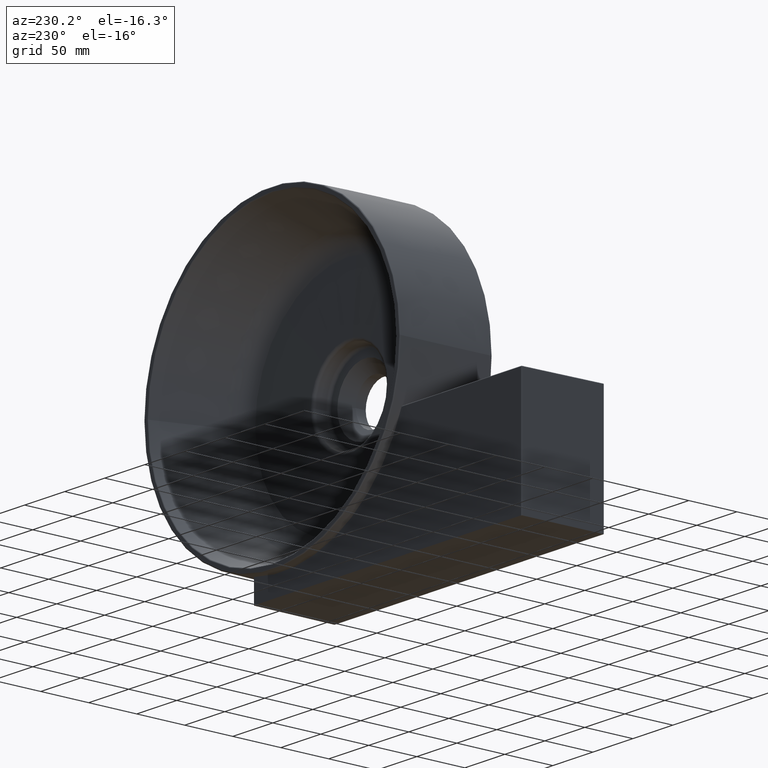
[diagram: clean part render]
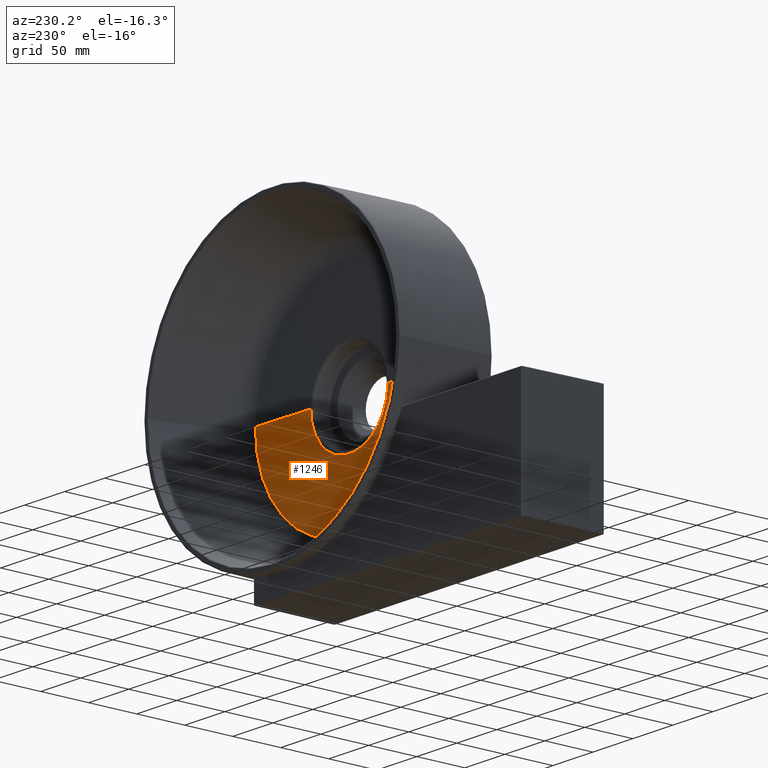
[diagram: same view with one face highlighted and labeled with its STEP entity id]
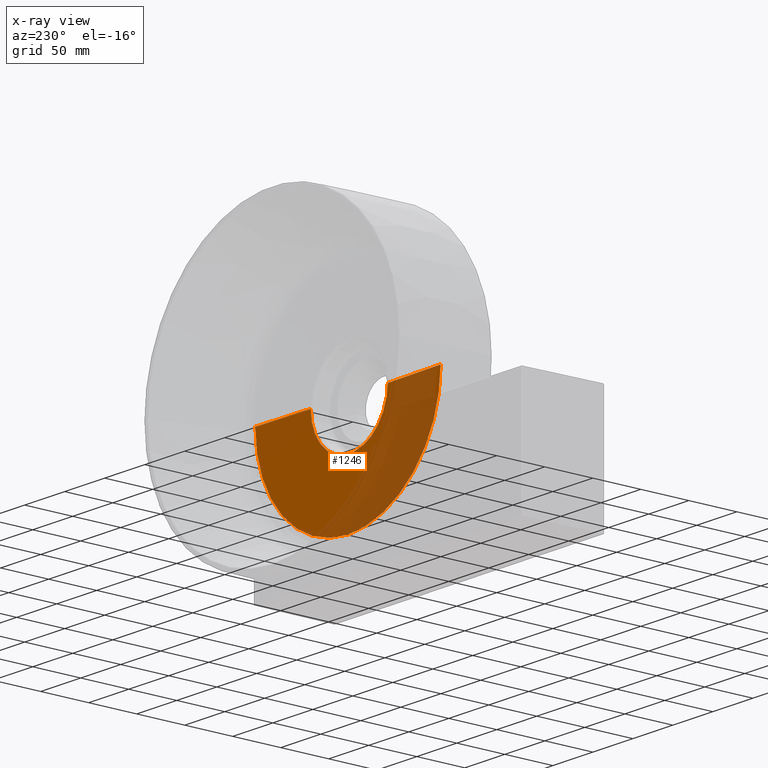
[diagram: x-ray of the same camera — body ghosted, the highlighted face saturated]
A machine part, auxiliary view. The second image highlights one B-rep face of the part: STEP entity #1246.
The next image is the same camera in x-ray: the body ghosted, the highlighted face saturated — about 46% of this face is hidden behind the body in this view.
In plain terms, the highlighted conical surface has half-angle 88.854 deg.
Its self-contained STEP definition (entity closure, byte-faithful):
#90 = DIRECTION ( 'NONE',  ( -1.214623636765614367E-16, -1.000000000000000000, -0.0000000000000000000 ) ) ;
#167 = EDGE_CURVE ( 'NONE', #2994, #1311, #627, .T. ) ;
#304 = DIRECTION ( 'NONE',  ( 1.000000000000000000, -1.440550126407961937E-16, 0.0000000000000000000 ) ) ;
#344 = AXIS2_PLACEMENT_3D ( 'NONE', #2357, #90, #304 ) ;
#378 = DIRECTION ( 'NONE',  ( 0.9998000599800070942, 0.01999600119959983602, 0.0000000000000000000 ) ) ;
#444 = AXIS2_PLACEMENT_3D ( 'NONE', #2263, #497, #1232 ) ;
#453 = EDGE_CURVE ( 'NONE', #457, #1311, #673, .T. ) ;
#457 = VERTEX_POINT ( 'NONE', #1357 ) ;
#497 = DIRECTION ( 'NONE',  ( 1.214623636765614367E-16, 1.000000000000000000, 0.0000000000000000000 ) ) ;
#627 = LINE ( 'NONE', #1608, #3128 ) ;
#673 = CIRCLE ( 'NONE', #1252, 115.7594727084466939 ) ;
#683 = ORIENTED_EDGE ( 'NONE', *, *, #2099, .T. ) ;
#741 = CARTESIAN_POINT ( 'NONE',  ( 92.67634049496555804, 36.26575789991629506, -5.898922955379708213E-15 ) ) ;
#826 = DIRECTION ( 'NONE',  ( 1.000000000000000000, -1.198846840186222324E-16, 0.0000000000000000000 ) ) ;
#1136 = EDGE_LOOP ( 'NONE', ( #2300, #683, #1674, #1873 ) ) ;
#1137 = CIRCLE ( 'NONE', #344, 48.16836135518231998 ) ;
#1232 = DIRECTION ( 'NONE',  ( 1.000000000000000000, -1.440550126407961937E-16, 0.0000000000000000000 ) ) ;
#1246 = ADVANCED_FACE ( 'NONE', ( #1527 ), #2790, .F. ) ;
#1252 = AXIS2_PLACEMENT_3D ( 'NONE', #2869, #2901, #826 ) ;
#1299 = CARTESIAN_POINT ( 'NONE',  ( 256.6041745585945932, 37.61758012698155085, 0.0000000000000000000 ) ) ;
#1311 = VERTEX_POINT ( 'NONE', #1299 ) ;
#1357 = CARTESIAN_POINT ( 'NONE',  ( 25.08522914170119122, 37.61758012698157927, -1.531992514450001180E-14 ) ) ;
#1527 = FACE_OUTER_BOUND ( 'NONE', #1136, .T. ) ;
#1592 = EDGE_CURVE ( 'NONE', #2766, #457, #2272, .T. ) ;
#1608 = CARTESIAN_POINT ( 'NONE',  ( 189.0130632053302122, 36.26575789991628085, 0.0000000000000000000 ) ) ;
#1674 = ORIENTED_EDGE ( 'NONE', *, *, #167, .T. ) ;
#1873 = ORIENTED_EDGE ( 'NONE', *, *, #453, .F. ) ;
#2033 = VECTOR ( 'NONE', #3102, 999.9999999999998863 ) ;
#2099 = EDGE_CURVE ( 'NONE', #2766, #2994, #1137, .T. ) ;
#2263 = CARTESIAN_POINT ( 'NONE',  ( 140.8447018501478851, 36.26575789991628795, 0.0000000000000000000 ) ) ;
#2272 = LINE ( 'NONE', #741, #2033 ) ;
#2300 = ORIENTED_EDGE ( 'NONE', *, *, #1592, .F. ) ;
#2357 = CARTESIAN_POINT ( 'NONE',  ( 140.8447018501478851, 36.26575789991628795, 0.0000000000000000000 ) ) ;
#2492 = CARTESIAN_POINT ( 'NONE',  ( 92.67634049496555804, 36.26575789991629506, -1.003768486385908325E-14 ) ) ;
#2611 = CARTESIAN_POINT ( 'NONE',  ( 189.0130632053302122, 36.26575789991628085, 0.0000000000000000000 ) ) ;
#2766 = VERTEX_POINT ( 'NONE', #2492 ) ;
#2790 = CONICAL_SURFACE ( 'NONE', #444, 48.16836135518231998, 1.550798992821746269 ) ;
#2869 = CARTESIAN_POINT ( 'NONE',  ( 140.8447018501478851, 37.61758012698156506, 0.0000000000000000000 ) ) ;
#2901 = DIRECTION ( 'NONE',  ( -1.214623636765614367E-16, -1.000000000000000000, -0.0000000000000000000 ) ) ;
#2994 = VERTEX_POINT ( 'NONE', #2611 ) ;
#3102 = DIRECTION ( 'NONE',  ( -0.9998000599800070942, 0.01999600119960008235, -1.224401943241847489E-16 ) ) ;
#3128 = VECTOR ( 'NONE', #378, 999.9999999999998863 ) ;